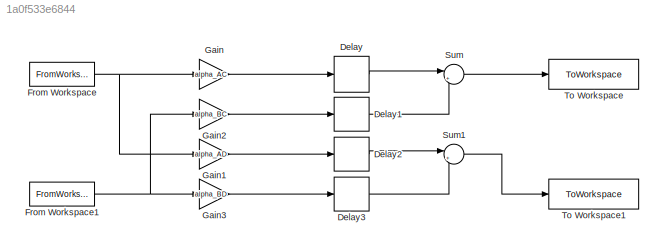
MODEL slx_1a0f533e6844
KIND model
CONFIG AbsTol = auto
CONFIG EnableMultiTasking = off
CONFIG FixedStep = 1/Fs
CONFIG MaxStep = auto
CONFIG MinStep = auto
CONFIG RelTol = 1e-3
CONFIG SampleTimeConstraint = Unconstrained
CONFIG SolverName = FixedStepAuto
CONFIG StartTime = 0.0
CONFIG StopTime = 10
BLOCK [Delay] Delay
  DelayLength = beta_AC
  InitialCondition = 0
  InputPortMap = u0
  Ports = [1, 1]
BLOCK [Delay] Delay1
  DelayLength = beta_BC
  InitialCondition = 0
  InputPortMap = u0
  Ports = [1, 1]
BLOCK [Delay] Delay2
  DelayLength = beta_AD
  InitialCondition = 0
  InputPortMap = u0
  Ports = [1, 1]
BLOCK [Delay] Delay3
  DelayLength = beta_BD
  InitialCondition = 0
  InputPortMap = u0
  Ports = [1, 1]
BLOCK [FromWorkspace] From Workspace
  OutputAfterFinalValue = Setting to zero
  VariableName = A
BLOCK [FromWorkspace] From Workspace1
  OutputAfterFinalValue = Setting to zero
  VariableName = B
BLOCK [Gain] Gain
  Gain = alpha_AC
BLOCK [Gain] Gain1
  Gain = alpha_AD
BLOCK [Gain] Gain2
  Gain = alpha_BC
BLOCK [Gain] Gain3
  Gain = alpha_BD
BLOCK [Sum] Sum
  Inputs = |++
  Ports = [2, 1]
BLOCK [Sum] Sum1
  Inputs = |++
  Ports = [2, 1]
BLOCK [ToWorkspace] To Workspace
  FixptAsFi = on
  MaxDataPoints = inf
  Ports = [1]
  SampleTime = -1
  Save2DSignal = 2-D array (concatenate along first dimension)
  SaveFormat = Timeseries
  VariableName = C
BLOCK [ToWorkspace] To Workspace1
  FixptAsFi = on
  MaxDataPoints = inf
  Ports = [1]
  SampleTime = -1
  Save2DSignal = 2-D array (concatenate along first dimension)
  SaveFormat = Timeseries
  VariableName = D
LINE Delay1:1 -> Sum:2
LINE Delay2:1 -> Sum1:1
LINE Delay3:1 -> Sum1:2
LINE Delay:1 -> Sum:1
NET From Workspace1:1 -> Gain2:1, Gain3:1
NET From Workspace:1 -> Gain1:1, Gain:1
LINE Gain1:1 -> Delay2:1
LINE Gain2:1 -> Delay1:1
LINE Gain3:1 -> Delay3:1
LINE Gain:1 -> Delay:1
LINE Sum1:1 -> To Workspace1:1
LINE Sum:1 -> To Workspace:1
note: NET lines group one-source signal fan-out (src -> all destinations, sorted); 1:1 wires keep LINE
